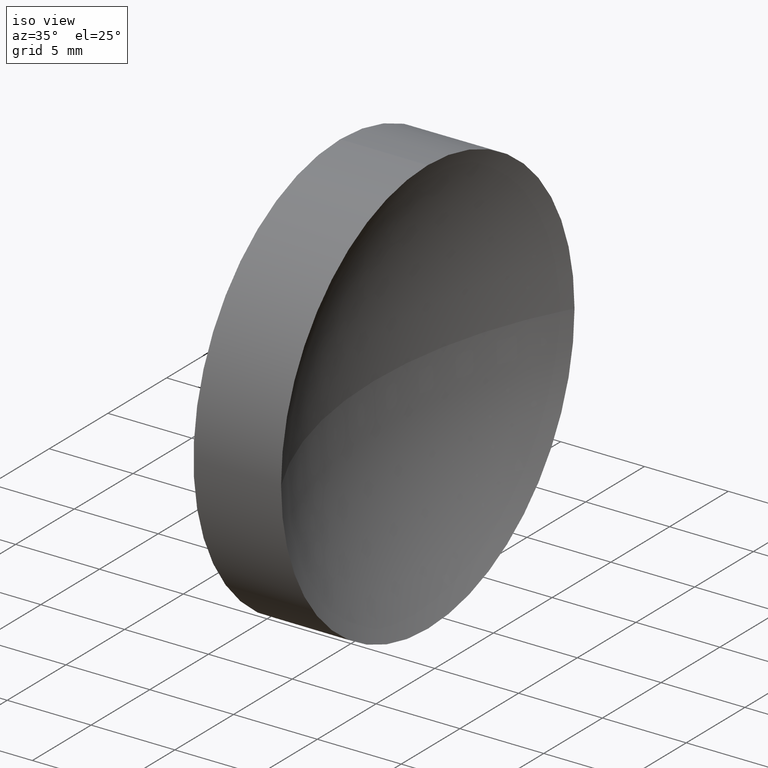
[diagram: clean part render]
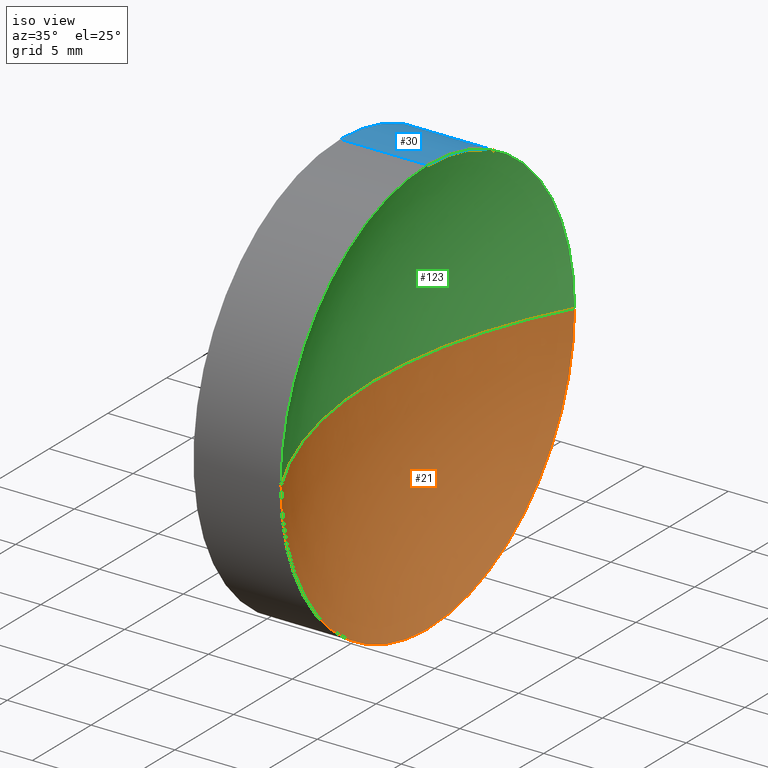
[diagram: same view with three faces highlighted in distinct colors, each labeled with its STEP entity id]
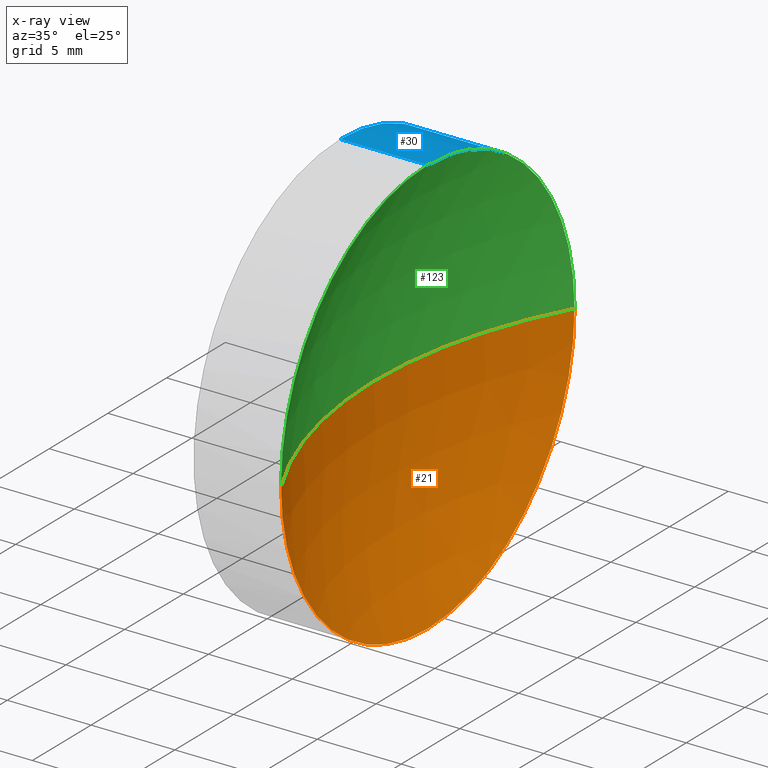
[diagram: x-ray of the same camera — body ghosted, the three highlighted faces saturated]
A machine part, iso view with three faces highlighted in distinct colors.
The next image is the same camera in x-ray (body ghosted, the three faces saturated) — at least one of them is partly hidden behind the body in this view.
Their STEP definitions:

[orange] entity #21 — the highlighted spherical surface has radius 25.84 mm.
#8 = ORIENTED_EDGE ( 'NONE', *, *, #40, .T. ) ;
#9 = AXIS2_PLACEMENT_3D ( 'NONE', #162, #72, #178 ) ;
#15 = CARTESIAN_POINT ( 'NONE',  ( 62.75695290809913000, 45.11076812922678400, 1.530808498934191100E-015 ) ) ;
#17 = VERTEX_POINT ( 'NONE', #65 ) ;
#20 = VERTEX_POINT ( 'NONE', #182 ) ;
#21 = ADVANCED_FACE ( 'NONE', ( #32 ), #45, .F. ) ;
#28 = DIRECTION ( 'NONE',  ( 0.0000000000000000000, 0.0000000000000000000, 1.000000000000000000 ) ) ;
#31 = DIRECTION ( 'NONE',  ( -1.000000000000000000, -0.0000000000000000000, -0.0000000000000000000 ) ) ;
#32 = FACE_OUTER_BOUND ( 'NONE', #93, .T. ) ;
#38 = DIRECTION ( 'NONE',  ( 0.0000000000000000000, 0.0000000000000000000, 1.000000000000000000 ) ) ;
#40 = EDGE_CURVE ( 'NONE', #95, #17, #185, .T. ) ;
#45 = SPHERICAL_SURFACE ( 'NONE', #127, 25.84000000000000300 ) ;
#49 = ORIENTED_EDGE ( 'NONE', *, *, #161, .F. ) ;
#50 = CARTESIAN_POINT ( 'NONE',  ( 62.75695290809913000, 32.61076812922678400, -12.49999999999999600 ) ) ;
#52 = DIRECTION ( 'NONE',  ( 0.0000000000000000000, -1.000000000000000000, 0.0000000000000000000 ) ) ;
#54 = DIRECTION ( 'NONE',  ( 0.0000000000000000000, 0.0000000000000000000, 1.000000000000000000 ) ) ;
#65 = CARTESIAN_POINT ( 'NONE',  ( 59.53233705252612400, 32.61076812922678400, 0.0000000000000000000 ) ) ;
#66 = CIRCLE ( 'NONE', #9, 25.84000000000000300 ) ;
#69 = CIRCLE ( 'NONE', #103, 12.49999999999999600 ) ;
#70 = DIRECTION ( 'NONE',  ( 0.0000000000000000000, -1.000000000000000000, -1.224646799147353200E-016 ) ) ;
#72 = DIRECTION ( 'NONE',  ( 0.0000000000000000000, 0.0000000000000000000, -1.000000000000000000 ) ) ;
#87 = CARTESIAN_POINT ( 'NONE',  ( 62.75695290809913000, 32.61076812922678400, 0.0000000000000000000 ) ) ;
#93 = EDGE_LOOP ( 'NONE', ( #167, #8, #49, #129 ) ) ;
#95 = VERTEX_POINT ( 'NONE', #15 ) ;
#103 = AXIS2_PLACEMENT_3D ( 'NONE', #87, #31, #54 ) ;
#108 = VERTEX_POINT ( 'NONE', #50 ) ;
#118 = CIRCLE ( 'NONE', #183, 12.49999999999999600 ) ;
#125 = CARTESIAN_POINT ( 'NONE',  ( 62.75695290809913000, 32.61076812922678400, 0.0000000000000000000 ) ) ;
#127 = AXIS2_PLACEMENT_3D ( 'NONE', #186, #28, #52 ) ;
#129 = ORIENTED_EDGE ( 'NONE', *, *, #132, .F. ) ;
#132 = EDGE_CURVE ( 'NONE', #108, #20, #69, .T. ) ;
#136 = DIRECTION ( 'NONE',  ( -1.000000000000000000, -0.0000000000000000000, -0.0000000000000000000 ) ) ;
#138 = EDGE_CURVE ( 'NONE', #95, #108, #118, .T. ) ;
#161 = EDGE_CURVE ( 'NONE', #20, #17, #66, .T. ) ;
#162 = CARTESIAN_POINT ( 'NONE',  ( 85.37233705252613400, 32.61076812922678400, 0.0000000000000000000 ) ) ;
#167 = ORIENTED_EDGE ( 'NONE', *, *, #138, .F. ) ;
#168 = AXIS2_PLACEMENT_3D ( 'NONE', #175, #170, #70 ) ;
#170 = DIRECTION ( 'NONE',  ( 0.0000000000000000000, -1.224646799147353200E-016, 1.000000000000000000 ) ) ;
#175 = CARTESIAN_POINT ( 'NONE',  ( 85.37233705252613400, 32.61076812922678400, 0.0000000000000000000 ) ) ;
#178 = DIRECTION ( 'NONE',  ( -1.000000000000000000, 0.0000000000000000000, 0.0000000000000000000 ) ) ;
#182 = CARTESIAN_POINT ( 'NONE',  ( 62.75695290809913000, 20.11076812922679100, 0.0000000000000000000 ) ) ;
#183 = AXIS2_PLACEMENT_3D ( 'NONE', #125, #136, #38 ) ;
#185 = CIRCLE ( 'NONE', #168, 25.84000000000000300 ) ;
#186 = CARTESIAN_POINT ( 'NONE',  ( 85.37233705252613400, 32.61076812922678400, 0.0000000000000000000 ) ) ;

[blue] entity #30 — the highlighted cylindrical surface (partial cylindrical patch) has radius 12.5 mm, axis along (-1, -0, -0).
#14 = CARTESIAN_POINT ( 'NONE',  ( 56.10091507999716500, 32.61076812922678400, 0.0000000000000000000 ) ) ;
#15 = CARTESIAN_POINT ( 'NONE',  ( 62.75695290809913000, 45.11076812922678400, 1.530808498934191100E-015 ) ) ;
#19 = EDGE_CURVE ( 'NONE', #60, #164, #88, .T. ) ;
#22 = FACE_OUTER_BOUND ( 'NONE', #42, .T. ) ;
#25 = EDGE_CURVE ( 'NONE', #60, #95, #116, .T. ) ;
#29 = CARTESIAN_POINT ( 'NONE',  ( 57.53233705252611700, 32.61076812922678400, 12.49999999999999600 ) ) ;
#30 = ADVANCED_FACE ( 'NONE', ( #22 ), #80, .T. ) ;
#35 = CARTESIAN_POINT ( 'NONE',  ( 62.75695290809913000, 32.61076812922678400, 0.0000000000000000000 ) ) ;
#36 = DIRECTION ( 'NONE',  ( 0.0000000000000000000, 0.0000000000000000000, 1.000000000000000000 ) ) ;
#37 = DIRECTION ( 'NONE',  ( -1.000000000000000000, -0.0000000000000000000, -0.0000000000000000000 ) ) ;
#38 = DIRECTION ( 'NONE',  ( 0.0000000000000000000, 0.0000000000000000000, 1.000000000000000000 ) ) ;
#42 = EDGE_LOOP ( 'NONE', ( #180, #97, #91, #111, #143 ) ) ;
#50 = CARTESIAN_POINT ( 'NONE',  ( 62.75695290809913000, 32.61076812922678400, -12.49999999999999600 ) ) ;
#51 = CARTESIAN_POINT ( 'NONE',  ( 62.75695290809913000, 32.61076812922678400, 12.49999999999999600 ) ) ;
#55 = VERTEX_POINT ( 'NONE', #117 ) ;
#60 = VERTEX_POINT ( 'NONE', #51 ) ;
#68 = DIRECTION ( 'NONE',  ( -1.000000000000000000, -0.0000000000000000000, -0.0000000000000000000 ) ) ;
#80 = CYLINDRICAL_SURFACE ( 'NONE', #124, 12.49999999999999600 ) ;
#82 = AXIS2_PLACEMENT_3D ( 'NONE', #121, #85, #120 ) ;
#85 = DIRECTION ( 'NONE',  ( -1.000000000000000000, -0.0000000000000000000, -0.0000000000000000000 ) ) ;
#86 = DIRECTION ( 'NONE',  ( 0.0000000000000000000, 0.0000000000000000000, 1.000000000000000000 ) ) ;
#88 = LINE ( 'NONE', #174, #153 ) ;
#89 = EDGE_CURVE ( 'NONE', #108, #55, #179, .T. ) ;
#91 = ORIENTED_EDGE ( 'NONE', *, *, #109, .F. ) ;
#94 = AXIS2_PLACEMENT_3D ( 'NONE', #35, #68, #36 ) ;
#95 = VERTEX_POINT ( 'NONE', #15 ) ;
#97 = ORIENTED_EDGE ( 'NONE', *, *, #89, .T. ) ;
#108 = VERTEX_POINT ( 'NONE', #50 ) ;
#109 = EDGE_CURVE ( 'NONE', #164, #55, #141, .T. ) ;
#111 = ORIENTED_EDGE ( 'NONE', *, *, #19, .F. ) ;
#116 = CIRCLE ( 'NONE', #94, 12.49999999999999600 ) ;
#117 = CARTESIAN_POINT ( 'NONE',  ( 57.53233705252611700, 32.61076812922678400, -12.49999999999999600 ) ) ;
#118 = CIRCLE ( 'NONE', #183, 12.49999999999999600 ) ;
#120 = DIRECTION ( 'NONE',  ( 0.0000000000000000000, 0.0000000000000000000, 1.000000000000000000 ) ) ;
#121 = CARTESIAN_POINT ( 'NONE',  ( 57.53233705252611700, 32.61076812922678400, 0.0000000000000000000 ) ) ;
#124 = AXIS2_PLACEMENT_3D ( 'NONE', #14, #133, #86 ) ;
#125 = CARTESIAN_POINT ( 'NONE',  ( 62.75695290809913000, 32.61076812922678400, 0.0000000000000000000 ) ) ;
#133 = DIRECTION ( 'NONE',  ( -1.000000000000000000, -0.0000000000000000000, -0.0000000000000000000 ) ) ;
#136 = DIRECTION ( 'NONE',  ( -1.000000000000000000, -0.0000000000000000000, -0.0000000000000000000 ) ) ;
#138 = EDGE_CURVE ( 'NONE', #95, #108, #118, .T. ) ;
#141 = CIRCLE ( 'NONE', #82, 12.49999999999999600 ) ;
#143 = ORIENTED_EDGE ( 'NONE', *, *, #25, .T. ) ;
#147 = CARTESIAN_POINT ( 'NONE',  ( 56.10091507999716500, 32.61076812922678400, -12.49999999999999600 ) ) ;
#153 = VECTOR ( 'NONE', #37, 1000.000000000000000 ) ;
#154 = VECTOR ( 'NONE', #159, 1000.000000000000000 ) ;
#159 = DIRECTION ( 'NONE',  ( -1.000000000000000000, -0.0000000000000000000, -0.0000000000000000000 ) ) ;
#164 = VERTEX_POINT ( 'NONE', #29 ) ;
#174 = CARTESIAN_POINT ( 'NONE',  ( 56.10091507999716500, 32.61076812922678400, 12.49999999999999600 ) ) ;
#179 = LINE ( 'NONE', #147, #154 ) ;
#180 = ORIENTED_EDGE ( 'NONE', *, *, #138, .T. ) ;
#183 = AXIS2_PLACEMENT_3D ( 'NONE', #125, #136, #38 ) ;

[green] entity #123 — the highlighted spherical surface has radius 25.84 mm.
#9 = AXIS2_PLACEMENT_3D ( 'NONE', #162, #72, #178 ) ;
#10 = EDGE_CURVE ( 'NONE', #20, #60, #74, .T. ) ;
#13 = DIRECTION ( 'NONE',  ( 0.0000000000000000000, 0.0000000000000000000, 1.000000000000000000 ) ) ;
#15 = CARTESIAN_POINT ( 'NONE',  ( 62.75695290809913000, 45.11076812922678400, 1.530808498934191100E-015 ) ) ;
#17 = VERTEX_POINT ( 'NONE', #65 ) ;
#20 = VERTEX_POINT ( 'NONE', #182 ) ;
#25 = EDGE_CURVE ( 'NONE', #60, #95, #116, .T. ) ;
#35 = CARTESIAN_POINT ( 'NONE',  ( 62.75695290809913000, 32.61076812922678400, 0.0000000000000000000 ) ) ;
#36 = DIRECTION ( 'NONE',  ( 0.0000000000000000000, 0.0000000000000000000, 1.000000000000000000 ) ) ;
#40 = EDGE_CURVE ( 'NONE', #95, #17, #185, .T. ) ;
#51 = CARTESIAN_POINT ( 'NONE',  ( 62.75695290809913000, 32.61076812922678400, 12.49999999999999600 ) ) ;
#57 = ORIENTED_EDGE ( 'NONE', *, *, #40, .F. ) ;
#59 = ORIENTED_EDGE ( 'NONE', *, *, #161, .T. ) ;
#60 = VERTEX_POINT ( 'NONE', #51 ) ;
#65 = CARTESIAN_POINT ( 'NONE',  ( 59.53233705252612400, 32.61076812922678400, 0.0000000000000000000 ) ) ;
#66 = CIRCLE ( 'NONE', #9, 25.84000000000000300 ) ;
#68 = DIRECTION ( 'NONE',  ( -1.000000000000000000, -0.0000000000000000000, -0.0000000000000000000 ) ) ;
#70 = DIRECTION ( 'NONE',  ( 0.0000000000000000000, -1.000000000000000000, -1.224646799147353200E-016 ) ) ;
#72 = DIRECTION ( 'NONE',  ( 0.0000000000000000000, 0.0000000000000000000, -1.000000000000000000 ) ) ;
#74 = CIRCLE ( 'NONE', #146, 12.49999999999999600 ) ;
#94 = AXIS2_PLACEMENT_3D ( 'NONE', #35, #68, #36 ) ;
#95 = VERTEX_POINT ( 'NONE', #15 ) ;
#100 = DIRECTION ( 'NONE',  ( 0.0000000000000000000, 0.0000000000000000000, 1.000000000000000000 ) ) ;
#113 = AXIS2_PLACEMENT_3D ( 'NONE', #148, #100, #176 ) ;
#116 = CIRCLE ( 'NONE', #94, 12.49999999999999600 ) ;
#123 = ADVANCED_FACE ( 'NONE', ( #151 ), #166, .F. ) ;
#135 = ORIENTED_EDGE ( 'NONE', *, *, #25, .F. ) ;
#140 = EDGE_LOOP ( 'NONE', ( #57, #135, #173, #59 ) ) ;
#146 = AXIS2_PLACEMENT_3D ( 'NONE', #156, #184, #13 ) ;
#148 = CARTESIAN_POINT ( 'NONE',  ( 85.37233705252613400, 32.61076812922678400, 0.0000000000000000000 ) ) ;
#151 = FACE_OUTER_BOUND ( 'NONE', #140, .T. ) ;
#156 = CARTESIAN_POINT ( 'NONE',  ( 62.75695290809913000, 32.61076812922678400, 0.0000000000000000000 ) ) ;
#161 = EDGE_CURVE ( 'NONE', #20, #17, #66, .T. ) ;
#162 = CARTESIAN_POINT ( 'NONE',  ( 85.37233705252613400, 32.61076812922678400, 0.0000000000000000000 ) ) ;
#166 = SPHERICAL_SURFACE ( 'NONE', #113, 25.84000000000000300 ) ;
#168 = AXIS2_PLACEMENT_3D ( 'NONE', #175, #170, #70 ) ;
#170 = DIRECTION ( 'NONE',  ( 0.0000000000000000000, -1.224646799147353200E-016, 1.000000000000000000 ) ) ;
#173 = ORIENTED_EDGE ( 'NONE', *, *, #10, .F. ) ;
#175 = CARTESIAN_POINT ( 'NONE',  ( 85.37233705252613400, 32.61076812922678400, 0.0000000000000000000 ) ) ;
#176 = DIRECTION ( 'NONE',  ( 0.0000000000000000000, -1.000000000000000000, 0.0000000000000000000 ) ) ;
#178 = DIRECTION ( 'NONE',  ( -1.000000000000000000, 0.0000000000000000000, 0.0000000000000000000 ) ) ;
#182 = CARTESIAN_POINT ( 'NONE',  ( 62.75695290809913000, 20.11076812922679100, 0.0000000000000000000 ) ) ;
#184 = DIRECTION ( 'NONE',  ( -1.000000000000000000, -0.0000000000000000000, -0.0000000000000000000 ) ) ;
#185 = CIRCLE ( 'NONE', #168, 25.84000000000000300 ) ;